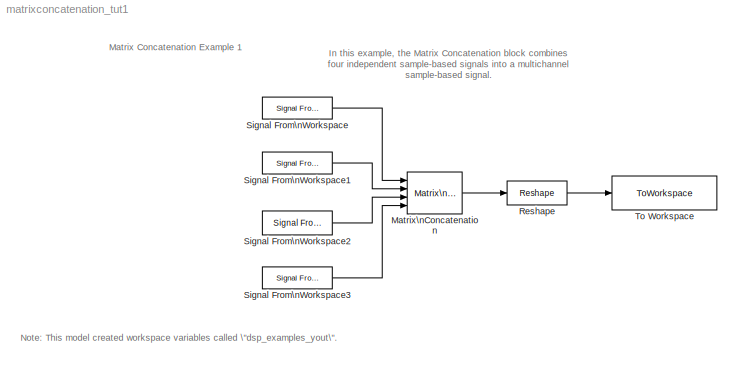
MODEL matrixconcatenation_tut1
KIND model
CONFIG AbsTol = auto
CONFIG FixedStep = auto
CONFIG MaxStep = auto
CONFIG MinStep = auto
CONFIG PostLoadFcn = set_param(gcs,'SimulationCommand','Update')
CONFIG PreLoadFcn = dsp_examples_A = [1:10;1 1 0 0 1 1 0 0 1 1]';
CONFIG RelTol = 1e-3
CONFIG Solver = FixedStepDiscrete
CONFIG SolverMode = Auto
CONFIG StartTime = 0.0
CONFIG StopTime = 10.0
BLOCK [Reference] Matrix\nConcatenation  REF=simulink/Math\nOperations/Matrix\nConcatenation
  Ports = [4, 1]
  SourceBlock = simulink/Math\nOperations/Matrix\nConcatenation
  SourceType = Matrix Concatenation
  catMethod = Vertical
  numInports = 4
BLOCK [Reference] Reshape  REF=simulink/Math\nOperations/Reshape
  OutputDimensionality = Customize
  OutputDimensions = [2,2]
  Ports = [1, 1]
  SourceBlock = simulink/Math\nOperations/Reshape
  SourceType = Reshape
BLOCK [Reference] Signal From\nWorkspace  REF=dspsrcs4/Signal From\nWorkspace
  OutputAfterFinalValue = Setting to zero
  Ports = [0, 1]
  SourceBlock = dspsrcs4/Signal From\nWorkspace
  SourceType = Signal From Workspace
  Ts = 1
  X = 1:10
  nsamps = 1
BLOCK [Reference] Signal From\nWorkspace1  REF=dspsrcs4/Signal From\nWorkspace
  OutputAfterFinalValue = Setting to zero
  Ports = [0, 1]
  SourceBlock = dspsrcs4/Signal From\nWorkspace
  SourceType = Signal From Workspace
  Ts = 1
  X = -1:-1:-10
  nsamps = 1
BLOCK [Reference] Signal From\nWorkspace2  REF=dspsrcs4/Signal From\nWorkspace
  OutputAfterFinalValue = Setting to zero
  Ports = [0, 1]
  SourceBlock = dspsrcs4/Signal From\nWorkspace
  SourceType = Signal From Workspace
  Ts = 1
  X = zeros(10,1)
  nsamps = 1
BLOCK [Reference] Signal From\nWorkspace3  REF=dspsrcs4/Signal From\nWorkspace
  OutputAfterFinalValue = Setting to zero
  Ports = [0, 1]
  SourceBlock = dspsrcs4/Signal From\nWorkspace
  SourceType = Signal From Workspace
  Ts = 1
  X = 5*ones(10,1)
  nsamps = 1
BLOCK [ToWorkspace] To Workspace
  MaxDataPoints = inf
  SampleTime = -1
  SaveFormat = Array
  VariableName = dsp_examples_yout
ANNOTATION (root): In this example, the Matrix Concatenation block combines \nfour independent sample-based signals into a multichannel\nsample-based signal.
ANNOTATION (root): Matrix Concatenation Example 1
ANNOTATION (root): Note: This model created workspace variables called \"dsp_examples_yout\".
LINE Matrix\nConcatenation:1 -> Reshape:1
LINE Reshape:1 -> To Workspace:1
LINE Signal From\nWorkspace1:1 -> Matrix\nConcatenation:2
LINE Signal From\nWorkspace2:1 -> Matrix\nConcatenation:3
LINE Signal From\nWorkspace3:1 -> Matrix\nConcatenation:4
LINE Signal From\nWorkspace:1 -> Matrix\nConcatenation:1
